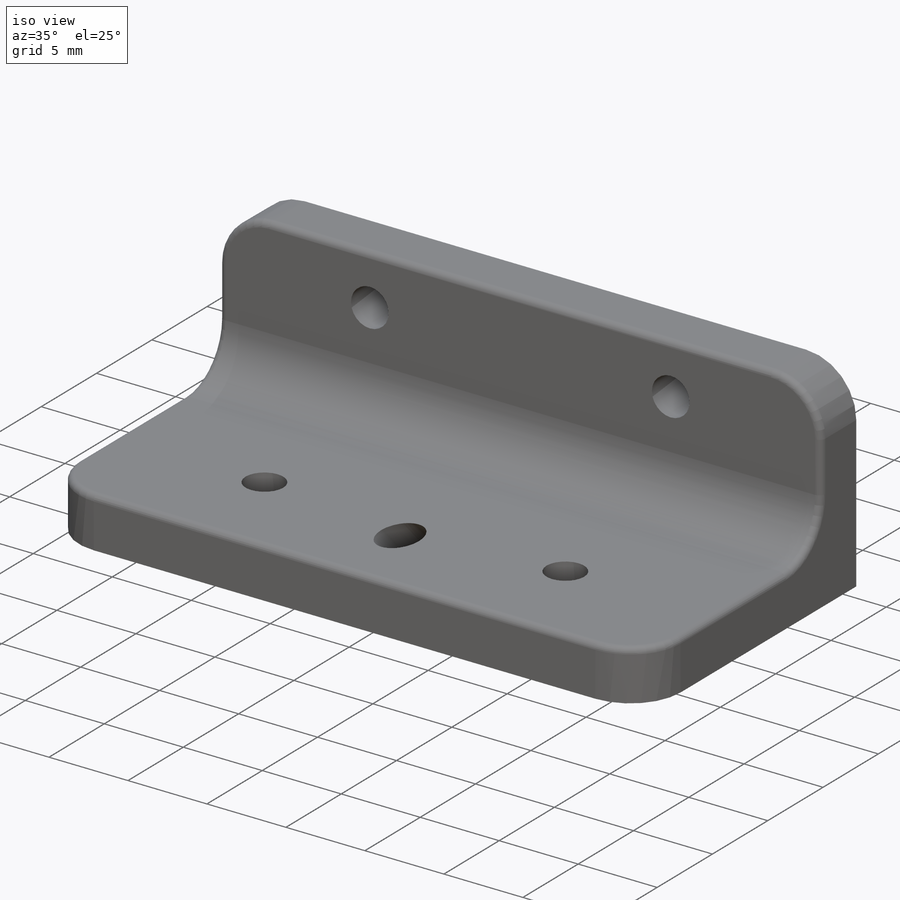
[diagram: iso view]
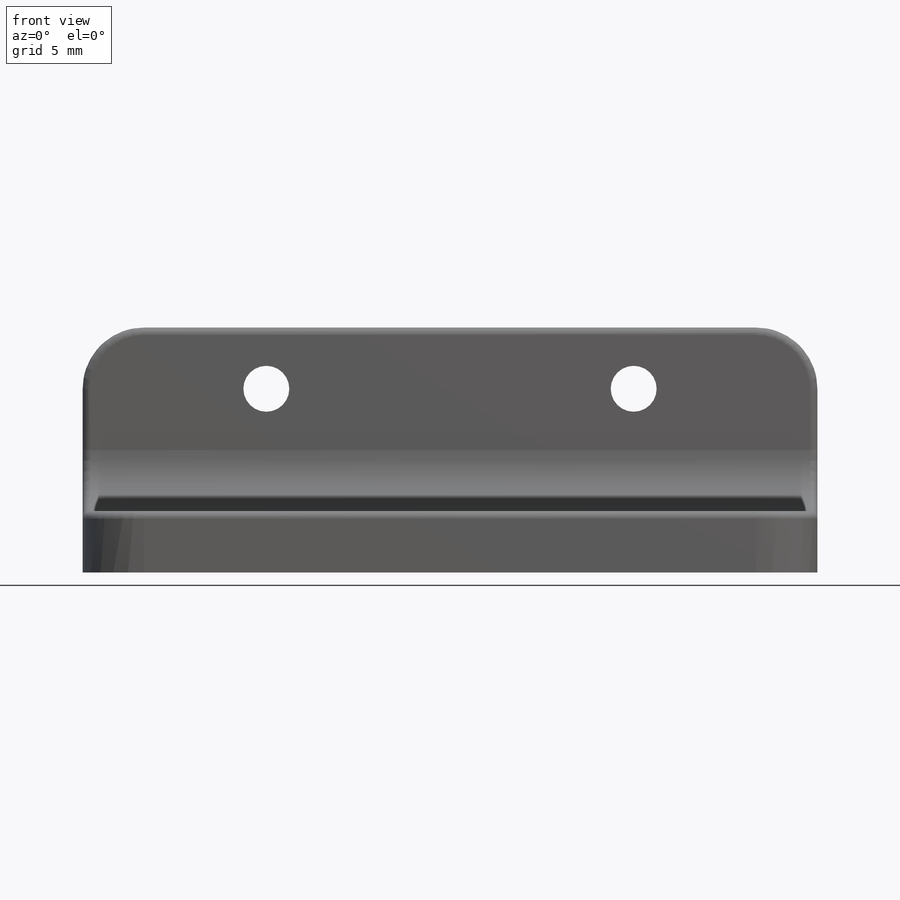
[diagram: front view]
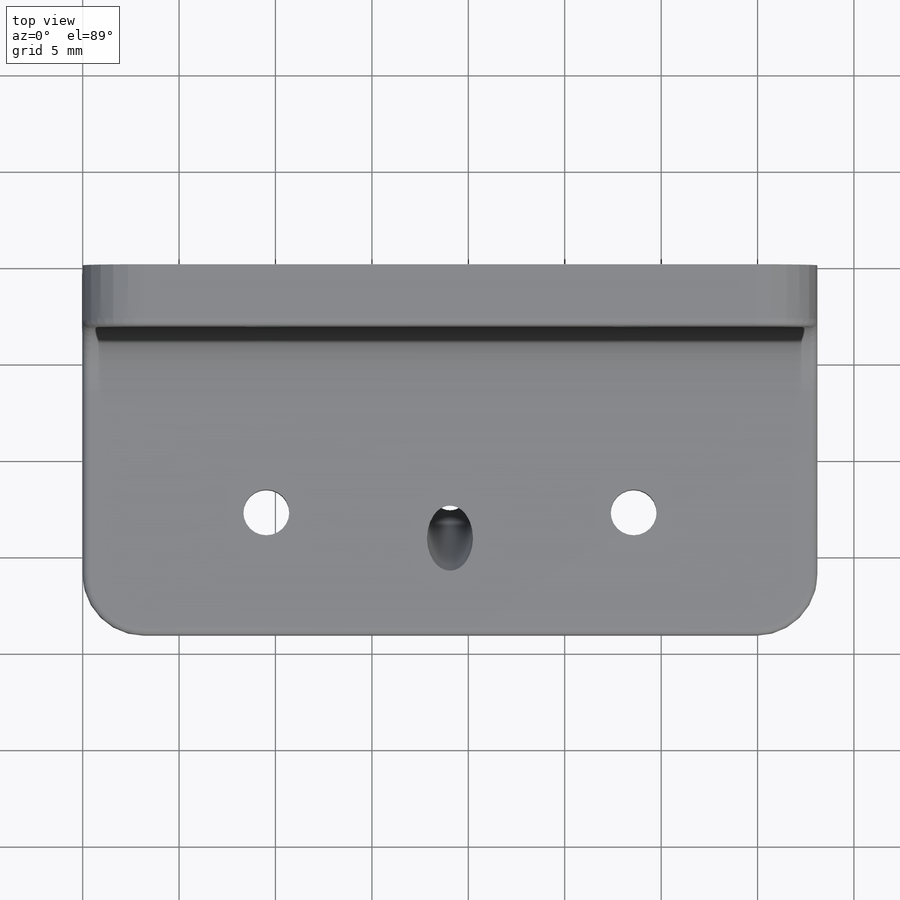
[diagram: top view]
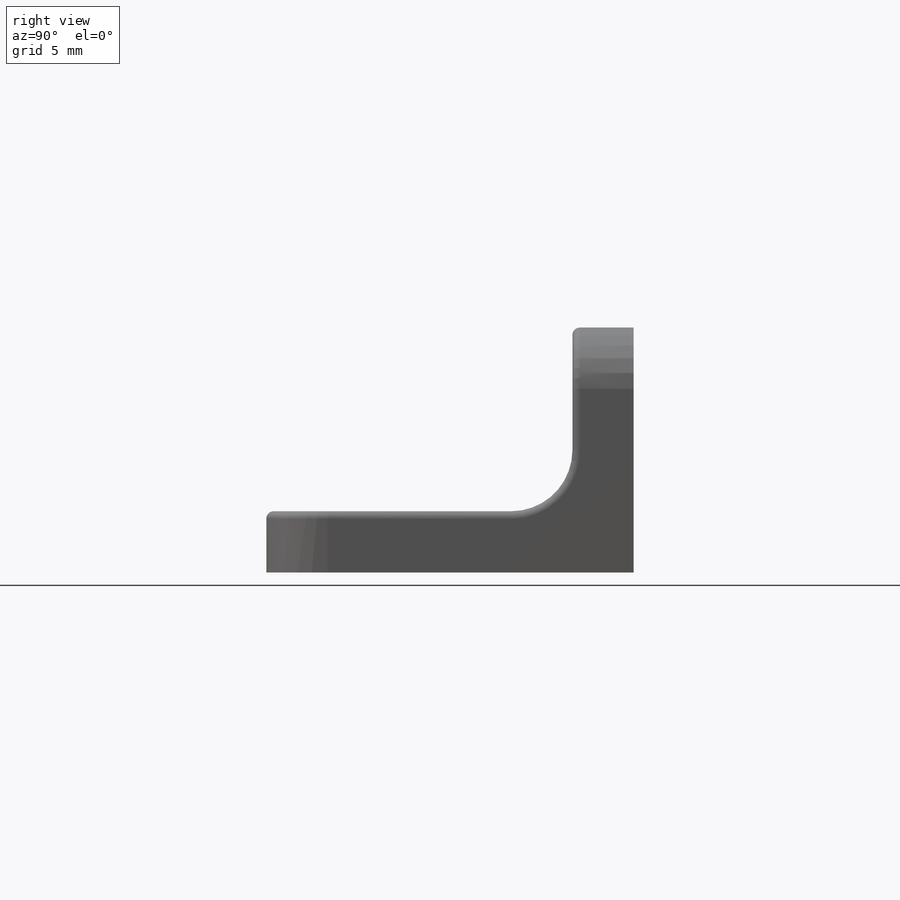
[diagram: right view]
SOLIDWORKS PART (.sldprt)
format: sldprt  version: not decoded by parser v0  size: 288,768 bytes
history: native  units: mm
features: sketch x4, extrude x2, plane x2, fillet x2, cut_extrude x2, material x1 (+13 scaffold rows collapsed)
feature tree (26):
  scaffold x13  (default folders/planes/origin — collapsed)
  material  "Material <not specified>"
  sketch  "Sketch1"  dims[D3=~2.38125mm D1=38.1mm D2=12.7mm D4=9.525mm D5=9.525mm]
  extrude  "Boss-Extrude1"  Depth=3.175mm
  plane  "Plane1"  Offset=0mm
  sketch  "Sketch2"  dims[D1=15.875mm]
  extrude  "Boss-Extrude2"  Depth=3.175mm
  fillet  "Fillet1"  Radius=3.175mm
  fillet  "Fillet2"  Radius=0.381mm
  plane  "Plane2"
  sketch  "Sketch3"  dims[D1=~2.38125mm D2=19.05mm D3=3.81mm]
  cut_extrude  "Cut-Extrude1"  [1 undecoded]
  sketch  "Sketch4"  dims[D1=~2.38125mm D2=6.35mm D3=9.525mm]
  cut_extrude  "Cut-Extrude2"  [1 undecoded]
decode coverage: 8 of 10 modeling features carry decoded parameters
note: ~ marks probable driven/reference dimensions
note: 2 parameter values undecoded
note: suppression state not decoded; provenance and decode notes live in map.json
